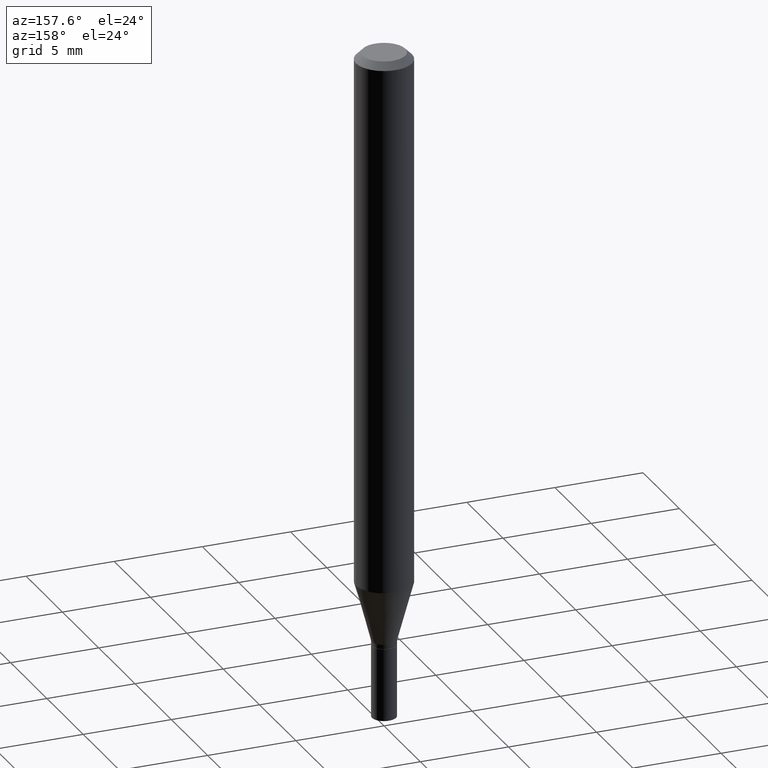
[diagram: clean part render]
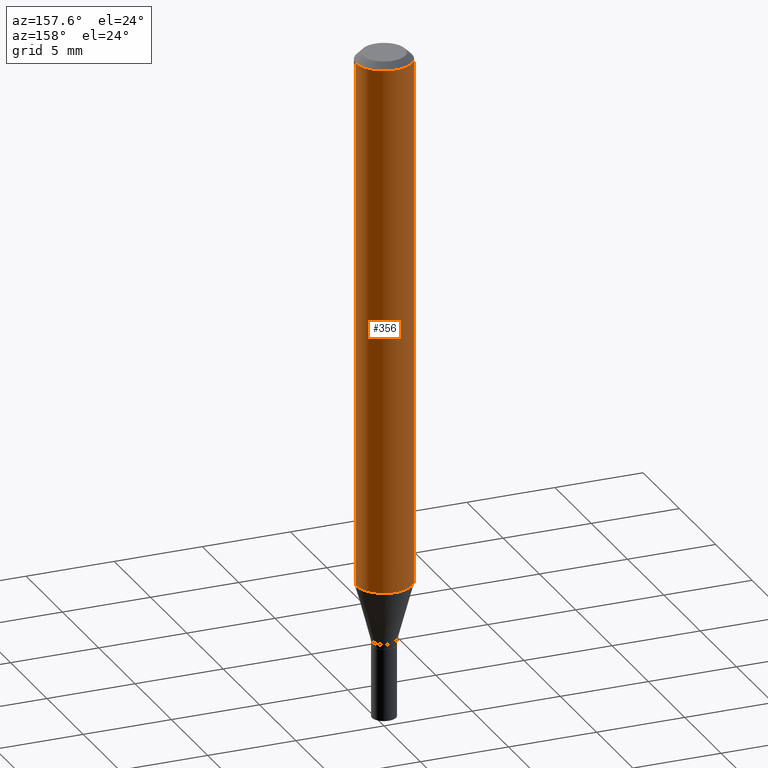
[diagram: same view with one face highlighted and labeled with its STEP entity id]
A machine part, auxiliary view. The second image highlights one B-rep face of the part: STEP entity #356.
In plain terms, the highlighted cylindrical surface (edge-blend (fillet) strip) has radius 1.5875 mm, axis along (-0, 0, 1).
Its self-contained STEP definition (entity closure, byte-faithful):
#45 = DIRECTION ( 'NONE',  ( -2.445468806185136877E-29, 3.491481338843145188E-15, 1.000000000000000000 ) ) ;
#58 = DIRECTION ( 'NONE',  ( -2.445468806185136597E-29, 3.491481338843145583E-15, 1.000000000000000000 ) ) ;
#59 = FACE_OUTER_BOUND ( 'NONE', #373, .T. ) ;
#80 = LINE ( 'NONE', #223, #248 ) ;
#82 = CARTESIAN_POINT ( 'NONE',  ( 0.06250000000000000000, -4.888073874380388472E-16, -0.01499999999999999944 ) ) ;
#83 = ORIENTED_EDGE ( 'NONE', *, *, #382, .F. ) ;
#88 = EDGE_CURVE ( 'NONE', #146, #402, #240, .T. ) ;
#91 = VECTOR ( 'NONE', #380, 39.37007874015748143 ) ;
#103 = AXIS2_PLACEMENT_3D ( 'NONE', #284, #395, #200 ) ;
#111 = ORIENTED_EDGE ( 'NONE', *, *, #88, .T. ) ;
#118 = VERTEX_POINT ( 'NONE', #82 ) ;
#130 = CARTESIAN_POINT ( 'NONE',  ( 3.668203209277705088E-31, -5.237222008264718399E-17, -0.01499999999999999944 ) ) ;
#146 = VERTEX_POINT ( 'NONE', #195 ) ;
#149 = DIRECTION ( 'NONE',  ( -2.445468806185136597E-29, 3.491481338843145583E-15, 1.000000000000000000 ) ) ;
#158 = CARTESIAN_POINT ( 'NONE',  ( 0.06250000000000000000, -4.364351673553916694E-16, 3.047610484872459871E-30 ) ) ;
#162 = DIRECTION ( 'NONE',  ( 1.000000000000000000, -6.982962677686266711E-15, 0.000000000000000000 ) ) ;
#179 = CARTESIAN_POINT ( 'NONE',  ( 2.923587783542086622E-29, -4.174108523850133238E-15, -1.195512196331304677 ) ) ;
#188 = VERTEX_POINT ( 'NONE', #340 ) ;
#195 = CARTESIAN_POINT ( 'NONE',  ( 0.06250000000000000000, -4.610543691205524908E-15, -1.195512196331304677 ) ) ;
#200 = DIRECTION ( 'NONE',  ( 1.000000000000000000, -6.982962677686266711E-15, 4.876176775795935793E-29 ) ) ;
#223 = CARTESIAN_POINT ( 'NONE',  ( -0.06250000000000000000, 4.440892098500626162E-16, -3.074334431409316114E-30 ) ) ;
#240 = CIRCLE ( 'NONE', #314, 0.06250000000000000000 ) ;
#248 = VECTOR ( 'NONE', #45, 39.37007874015748143 ) ;
#273 = ORIENTED_EDGE ( 'NONE', *, *, #282, .T. ) ;
#282 = EDGE_CURVE ( 'NONE', #402, #188, #80, .T. ) ;
#284 = CARTESIAN_POINT ( 'NONE',  ( 0.000000000000000000, 0.000000000000000000, 0.000000000000000000 ) ) ;
#299 = DIRECTION ( 'NONE',  ( 1.000000000000000000, -6.982962677686262766E-15, 0.000000000000000000 ) ) ;
#311 = EDGE_CURVE ( 'NONE', #146, #118, #417, .T. ) ;
#314 = AXIS2_PLACEMENT_3D ( 'NONE', #179, #149, #299 ) ;
#335 = ORIENTED_EDGE ( 'NONE', *, *, #311, .F. ) ;
#340 = CARTESIAN_POINT ( 'NONE',  ( -0.06250000000000000000, -1.669151162116327740E-15, -0.01499999999999999944 ) ) ;
#354 = CYLINDRICAL_SURFACE ( 'NONE', #103, 0.06250000000000000000 ) ;
#356 = ADVANCED_FACE ( 'NONE', ( #59 ), #354, .T. ) ;
#373 = EDGE_LOOP ( 'NONE', ( #111, #273, #83, #335 ) ) ;
#380 = DIRECTION ( 'NONE',  ( -2.445468806185136877E-29, 3.491481338843145188E-15, 1.000000000000000000 ) ) ;
#382 = EDGE_CURVE ( 'NONE', #118, #188, #454, .T. ) ;
#393 = AXIS2_PLACEMENT_3D ( 'NONE', #130, #58, #162 ) ;
#395 = DIRECTION ( 'NONE',  ( -2.445468806185136597E-29, 3.491481338843145583E-15, 1.000000000000000000 ) ) ;
#402 = VERTEX_POINT ( 'NONE', #423 ) ;
#417 = LINE ( 'NONE', #158, #91 ) ;
#423 = CARTESIAN_POINT ( 'NONE',  ( -0.06250000000000000000, -3.730019314000071411E-15, -1.195512196331304677 ) ) ;
#454 = CIRCLE ( 'NONE', #393, 0.06250000000000000000 ) ;